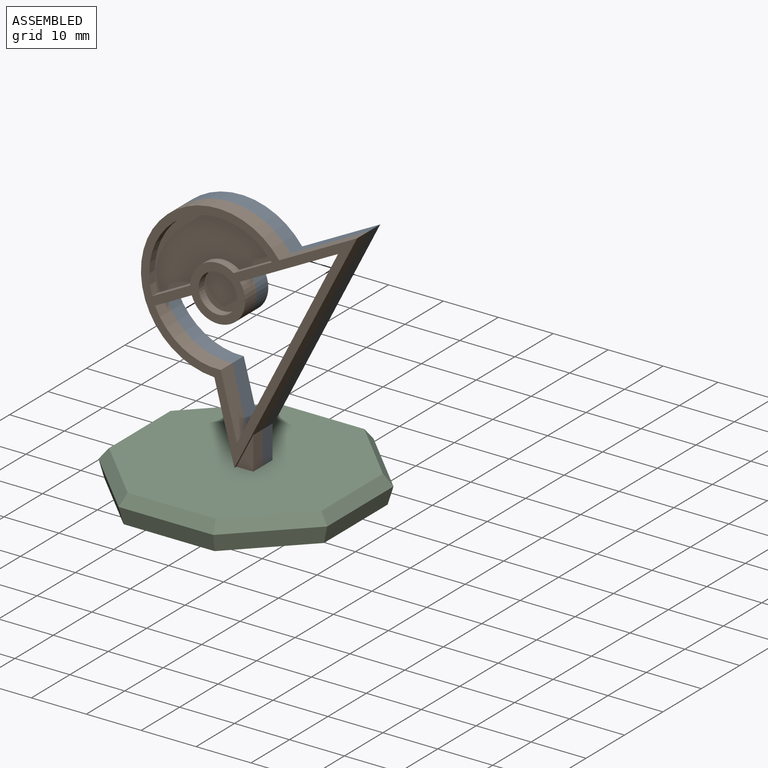
[diagram: assembled view]
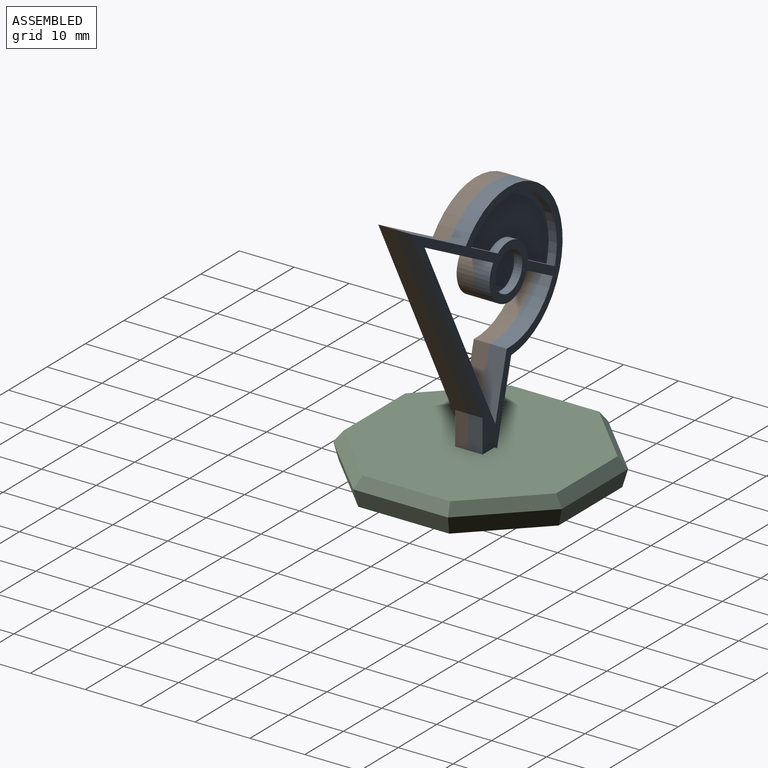
[diagram: assembled view, second angle]
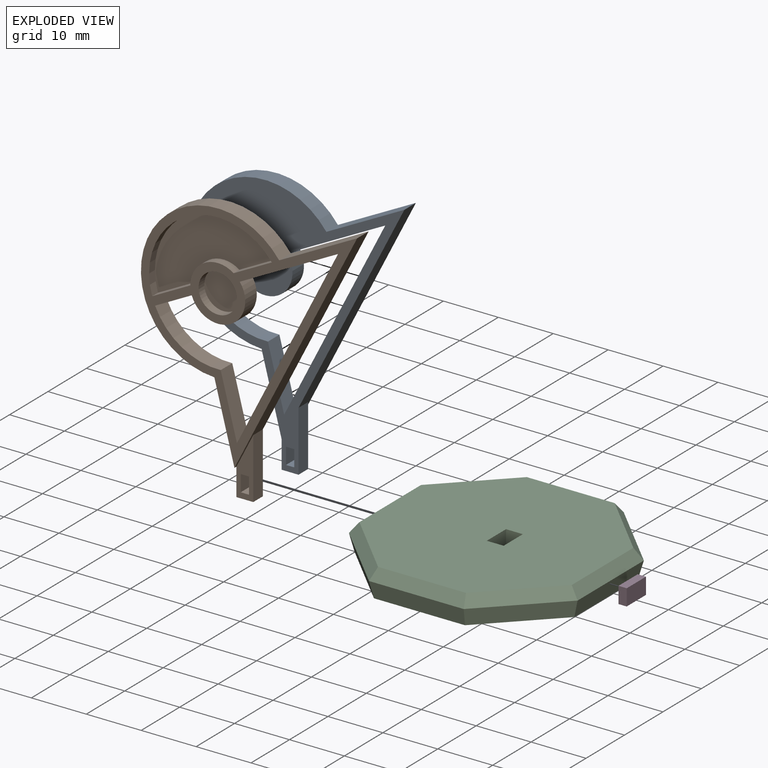
[diagram: exploded view]
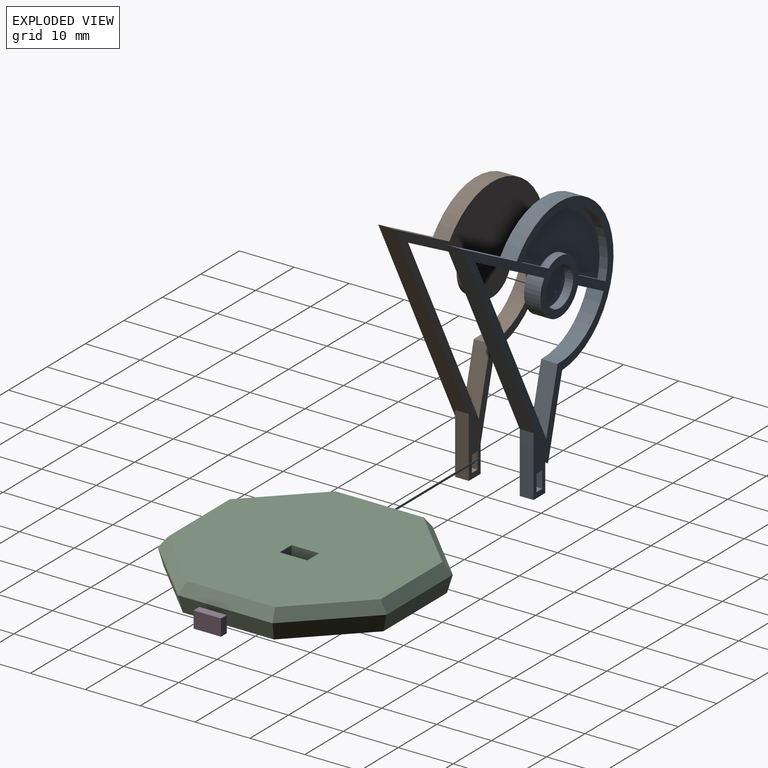
[diagram: exploded view, second angle]
ASSEMBLY  parts=4 mates=3
PART A: 27 faces, bbox 39.4x48.8x3 mm
  f0: plane 48.76x39.38mm, normal (0,0,-1), area 482.9mm2, adj f2,f3,f4,f8,f9,f10,f11,f12
  f1: plane 11.02x3.08mm, normal (0,0,1), area 20.1mm2, adj f13,f20,f21,f22,f23,f24,f25,f26
  f2: plane 14.2x7.42mm, normal (-0.46,-0.89,0), area 48.1mm2, adj f0,f3,f13,f17
  f3: cylinder r=14mm len=27.99mm, axis (0,0,-1), area 168.9mm2, adj f0,f2,f4,f17
  f4: plane 13.92x3.66mm, normal (-0.97,0.25,0), area 43.2mm2, adj f0,f3,f13,f17,f20
  f5: plane 6.95x3.63mm, normal (-0.46,-0.89,0), area 11.8mm2, adj f6,f14,f17,f19
  f6: cylinder r=12.5mm len=22.33mm, axis (0,0,-1), area 52mm2, adj f5,f7,f17,f19
  f7: plane 6.95x3.63mm, normal (-0.46,-0.89,0), area 11.8mm2, adj f6,f14,f17,f19
  f8: plane 11.24x3mm, normal (0.97,-0.25,0), area 34.9mm2, adj f0,f9,f15,f17
  f9: cylinder r=12.5mm len=11.95mm, axis (0,0,-1), area 44.8mm2, adj f0,f8,f10,f17
  f10: plane 6.68x3.49mm, normal (0.46,0.89,0), area 22.6mm2, adj f0,f9,f11,f17
  f11: cylinder r=5mm len=9.74mm, axis (0,0,-1), area 51.9mm2, adj f0,f10,f12,f17
  f12: plane 17.9x9.35mm, normal (0.46,0.89,0), area 60.6mm2, adj f0,f11,f15,f17
  f13: plane 43.76x22.35mm, normal (0.89,0.45,0), area 130.5mm2, adj f0,f1,f2,f4,f17,f22
  f14: cylinder r=5mm len=7.88mm, axis (0,0,-1), area 16.4mm2, adj f5,f7,f17,f19
  f15: plane 36.07x18.42mm, normal (-0.89,-0.45,0), area 121.5mm2, adj f0,f8,f12,f17
  f16: cylinder r=3.5mm len=7mm, axis (0,0,-1), area 33mm2, adj f17,f18
  f17: plane 43.76x39.38mm, normal (0,0,1), area 253mm2, adj f2,f3,f4,f5,f6,f7,f8,f9
  f18: plane 7x7mm, normal (0,0,1), area 38.5mm2, adj f16
  f19: plane 22.33x16.16mm, normal (0,0,1), area 171.3mm2, adj f5,f6,f7,f14
  f20: plane 5x2.5mm, normal (-1,0,0), area 12.5mm2, adj f0,f1,f4,f21
  f21: plane 3.08x2.5mm, normal (0,1,0), area 7.7mm2, adj f0,f1,f20,f22
  f22: plane 11.02x2.5mm, normal (1,0,0), area 27.6mm2, adj f0,f1,f13,f21
  f23: plane 2.5x1.5mm, normal (0,1,0), area 3.8mm2, adj f0,f1,f24,f26
  f24: plane 3x2.5mm, normal (-1,0,0), area 7.5mm2, adj f0,f1,f23,f25
  f25: plane 2.5x1.5mm, normal (0,-1,0), area 3.8mm2, adj f0,f1,f24,f26
  f26: plane 3x2.5mm, normal (1,0,0), area 7.5mm2, adj f0,f1,f23,f25
PART B: 27 faces, bbox 39.4x48.8x3 mm
  f0: plane 48.76x39.38mm, normal (0,0,-1), area 482.9mm2, adj f2,f3,f4,f8,f9,f10,f11,f12
  f1: plane 11.02x3.08mm, normal (0,0,1), area 20.1mm2, adj f13,f20,f21,f22,f23,f24,f25,f26
  f2: plane 14.2x7.42mm, normal (-0.46,0.89,0), area 48.1mm2, adj f0,f3,f13,f17
  f3: cylinder r=14mm len=27.99mm, axis (0,0,-1), area 168.9mm2, adj f0,f2,f4,f17
  f4: plane 13.92x3.66mm, normal (-0.97,-0.25,0), area 43.2mm2, adj f0,f3,f13,f17,f20
  f5: plane 6.95x3.63mm, normal (-0.46,0.89,0), area 11.8mm2, adj f6,f14,f17,f19
  f6: cylinder r=12.5mm len=22.33mm, axis (0,0,-1), area 52mm2, adj f5,f7,f17,f19
  f7: plane 6.95x3.63mm, normal (-0.46,0.89,0), area 11.8mm2, adj f6,f14,f17,f19
  f8: plane 11.24x3mm, normal (0.97,0.25,0), area 34.9mm2, adj f0,f9,f15,f17
  f9: cylinder r=12.5mm len=11.95mm, axis (0,0,-1), area 44.8mm2, adj f0,f8,f10,f17
  f10: plane 6.68x3.49mm, normal (0.46,-0.89,0), area 22.6mm2, adj f0,f9,f11,f17
  f11: cylinder r=5mm len=9.74mm, axis (0,0,-1), area 51.9mm2, adj f0,f10,f12,f17
  f12: plane 17.9x9.35mm, normal (0.46,-0.89,0), area 60.6mm2, adj f0,f11,f15,f17
  f13: plane 43.76x22.35mm, normal (0.89,-0.45,0), area 130.5mm2, adj f0,f1,f2,f4,f17,f22
  f14: cylinder r=5mm len=7.88mm, axis (0,0,-1), area 16.4mm2, adj f5,f7,f17,f19
  f15: plane 36.07x18.42mm, normal (-0.89,0.45,0), area 121.5mm2, adj f0,f8,f12,f17
  f16: cylinder r=3.5mm len=7mm, axis (0,0,-1), area 33mm2, adj f17,f18
  f17: plane 43.76x39.38mm, normal (0,0,1), area 253mm2, adj f2,f3,f4,f5,f6,f7,f8,f9
  f18: plane 7x7mm, normal (0,0,1), area 38.5mm2, adj f16
  f19: plane 22.33x16.16mm, normal (0,0,1), area 171.3mm2, adj f5,f6,f7,f14
  f20: plane 5x2.5mm, normal (-1,0,0), area 12.5mm2, adj f0,f1,f4,f21
  f21: plane 3.08x2.5mm, normal (0,-1,0), area 7.7mm2, adj f0,f1,f20,f22
  f22: plane 11.02x2.5mm, normal (1,0,0), area 27.6mm2, adj f0,f1,f13,f21
  f23: plane 2.5x1.5mm, normal (0,-1,0), area 3.8mm2, adj f0,f1,f24,f26
  f24: plane 3x2.5mm, normal (1,0,0), area 7.5mm2, adj f0,f1,f23,f25
  f25: plane 2.5x1.5mm, normal (0,1,0), area 3.8mm2, adj f0,f1,f24,f26
  f26: plane 3x2.5mm, normal (-1,0,0), area 7.5mm2, adj f0,f1,f23,f25
PART C: 22 faces, bbox 41.6x41.6x5 mm
  f0: plane 17.25x3.07mm, normal (-0.97,0,-0.26), area 53.7mm2, adj f1,f7,f9,f10
  f1: plane 12.54x12.54mm, normal (-0.68,-0.68,-0.26), area 53.7mm2, adj f0,f2,f9,f12
  f2: plane 17.25x3.07mm, normal (0,-0.97,-0.26), area 53.7mm2, adj f1,f3,f9,f14
  f3: plane 12.54x12.54mm, normal (0.68,-0.68,-0.26), area 53.7mm2, adj f2,f4,f9,f16
  f4: plane 17.25x3.07mm, normal (0.97,0,-0.26), area 53.7mm2, adj f3,f5,f9,f17
  f5: plane 12.54x12.54mm, normal (0.68,0.68,-0.26), area 53.7mm2, adj f4,f6,f9,f15
  f6: plane 17.25x3.07mm, normal (0,0.97,-0.26), area 53.7mm2, adj f5,f7,f9,f13
  f7: plane 12.54x12.54mm, normal (-0.68,0.68,-0.26), area 53.7mm2, adj f0,f6,f9,f11
  f8: plane 38.68x38.68mm, normal (0,0,1), area 1224mm2, adj f10,f11,f12,f13,f14,f15,f16,f17
  f9: plane 40x40mm, normal (0,0,-1), area 1310.1mm2, adj f0,f1,f2,f3,f4,f5,f6,f7
  f10: plane 17.25x1.93mm, normal (-0.79,0,0.61), area 40.5mm2, adj f0,f8,f11,f12
  f11: plane 12.81x12.81mm, normal (-0.56,0.56,0.61), area 40.5mm2, adj f7,f8,f10,f13
  f12: plane 12.81x12.81mm, normal (-0.56,-0.56,0.61), area 40.5mm2, adj f1,f8,f10,f14
  f13: plane 17.25x1.93mm, normal (0,0.79,0.61), area 40.5mm2, adj f6,f8,f11,f15
  f14: plane 17.25x1.93mm, normal (0,-0.79,0.61), area 40.5mm2, adj f2,f8,f12,f16
  f15: plane 12.81x12.81mm, normal (0.56,0.56,0.61), area 40.5mm2, adj f5,f8,f13,f17
  f16: plane 12.81x12.81mm, normal (0.56,-0.56,0.61), area 40.5mm2, adj f3,f8,f14,f17
  f17: plane 17.25x1.93mm, normal (0.79,0,0.61), area 40.5mm2, adj f4,f8,f15,f16
  f18: plane 5x5mm, normal (1,0,0), area 25mm2, adj f8,f9,f19,f21
  f19: plane 5x3.08mm, normal (0,1,0), area 15.4mm2, adj f8,f9,f18,f20
  f20: plane 5x5mm, normal (-1,0,0), area 25mm2, adj f8,f9,f19,f21
  f21: plane 5x3.08mm, normal (0,-1,0), area 15.4mm2, adj f8,f9,f18,f20
PART D: 6 faces, bbox 5x3x1.5 mm
  f0: plane 3x1.5mm, normal (-1,0,0), area 4.5mm2, adj f1,f3,f4,f5
  f1: plane 5x1.5mm, normal (0,-1,0), area 7.5mm2, adj f0,f2,f4,f5
  f2: plane 3x1.5mm, normal (1,0,0), area 4.5mm2, adj f1,f3,f4,f5
  f3: plane 5x1.5mm, normal (0,1,0), area 7.5mm2, adj f0,f2,f4,f5
  f4: plane 5x3mm, normal (0,0,1), area 15mm2, adj f0,f1,f2,f3
  f5: plane 5x3mm, normal (0,0,-1), area 15mm2, adj f0,f1,f2,f3
PLACE A rot(axis=(-1,0,0),90deg) t=(48.9,32.9,-33.01)mm
PLACE B rot(axis=(1,0,0),90deg) t=(48.9,-23.26,-30.51)mm
PLACE C t=(45.83,6.07,-33.01)mm
PLACE D rot(axis=(-0.58,0.58,-0.58),120deg) t=(46.61,-17.56,-17.04)mm
MATE planar A.f3 <-> B.f3  axis (0,-1,0) through (42.79,6.07,-0.11)mm
MATE planar C.f18 <-> B.f20  axis (1,0,0) through (45.83,6.07,-30.51)mm
MATE planar D.f5 <-> B.f24  axis (-1,0,0) through (46.61,6.07,-30.51)mm
